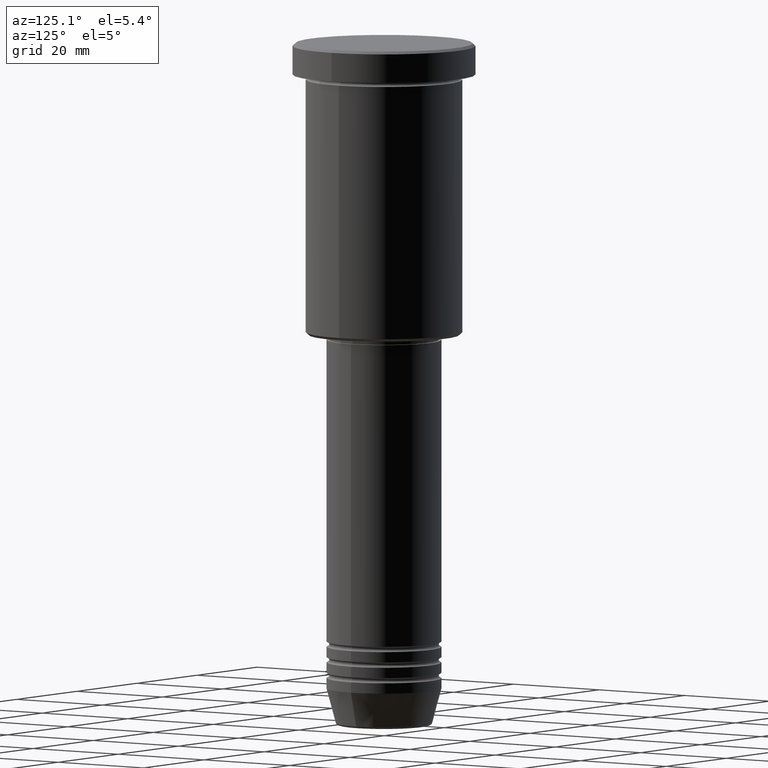
[diagram: clean part render]
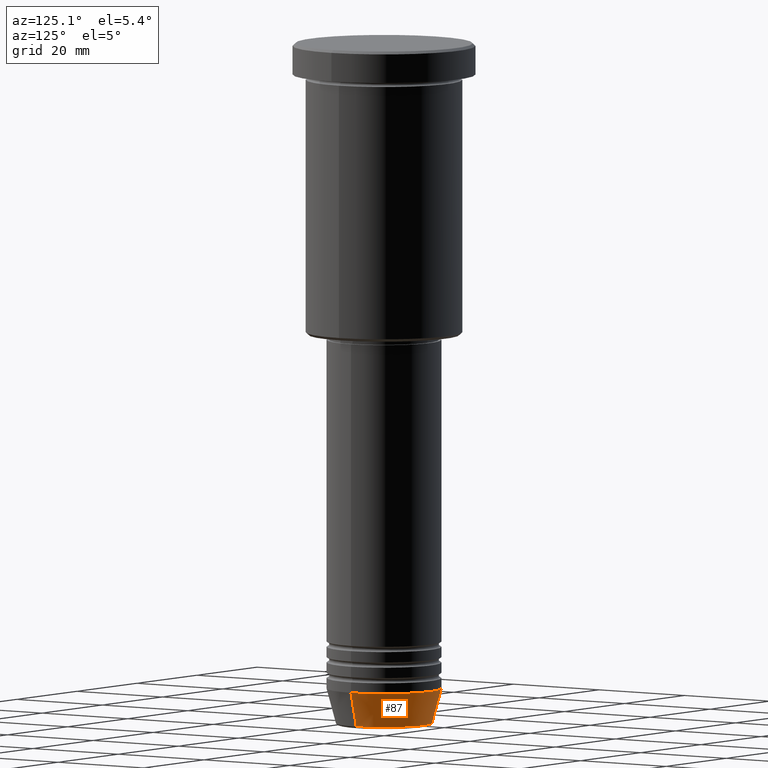
[diagram: same view with one face highlighted and labeled with its STEP entity id]
A machine part, auxiliary view. The second image highlights one B-rep face of the part: STEP entity #87.
In plain terms, the highlighted conical surface has half-angle 15 deg.
Its self-contained STEP definition (entity closure, byte-faithful):
#9 = AXIS2_PLACEMENT_3D ( 'NONE', #365, #901, #186 ) ;
#20 = DIRECTION ( 'NONE',  ( -0.000000000000000000, -0.000000000000000000, 1.000000000000000000 ) ) ;
#38 = ORIENTED_EDGE ( 'NONE', *, *, #137, .T. ) ;
#74 = CARTESIAN_POINT ( 'NONE',  ( 0.000000000000000000, 0.000000000000000000, -124.0000000000000000 ) ) ;
#87 = ADVANCED_FACE ( 'NONE', ( #357 ), #1093, .T. ) ;
#118 = VECTOR ( 'NONE', #348, 1000.000000000000000 ) ;
#137 = EDGE_CURVE ( 'NONE', #367, #667, #909, .T. ) ;
#141 = ORIENTED_EDGE ( 'NONE', *, *, #998, .T. ) ;
#174 = LINE ( 'NONE', #1151, #118 ) ;
#186 = DIRECTION ( 'NONE',  ( 1.000000000000000000, 0.000000000000000000, 0.000000000000000000 ) ) ;
#193 = AXIS2_PLACEMENT_3D ( 'NONE', #74, #703, #1164 ) ;
#201 = ORIENTED_EDGE ( 'NONE', *, *, #509, .F. ) ;
#303 = EDGE_CURVE ( 'NONE', #484, #667, #374, .T. ) ;
#316 = CIRCLE ( 'NONE', #9, 9.223655072137187716 ) ;
#348 = DIRECTION ( 'NONE',  ( 0.2588190451025213501, 0.000000000000000000, 0.9659258262890680902 ) ) ;
#357 = FACE_OUTER_BOUND ( 'NONE', #947, .T. ) ;
#365 = CARTESIAN_POINT ( 'NONE',  ( 0.000000000000000000, 0.000000000000000000, -130.6294095225512422 ) ) ;
#367 = VERTEX_POINT ( 'NONE', #1016 ) ;
#374 = CIRCLE ( 'NONE', #464, 11.00000000000000000 ) ;
#440 = ORIENTED_EDGE ( 'NONE', *, *, #303, .F. ) ;
#464 = AXIS2_PLACEMENT_3D ( 'NONE', #659, #20, #1145 ) ;
#484 = VERTEX_POINT ( 'NONE', #975 ) ;
#509 = EDGE_CURVE ( 'NONE', #586, #484, #174, .T. ) ;
#554 = DIRECTION ( 'NONE',  ( -0.2588190451025213501, 3.169619151431772337E-17, 0.9659258262890680902 ) ) ;
#586 = VERTEX_POINT ( 'NONE', #1092 ) ;
#659 = CARTESIAN_POINT ( 'NONE',  ( 0.000000000000000000, 0.000000000000000000, -124.0000000000000000 ) ) ;
#667 = VERTEX_POINT ( 'NONE', #1183 ) ;
#686 = VECTOR ( 'NONE', #554, 1000.000000000000000 ) ;
#703 = DIRECTION ( 'NONE',  ( -0.000000000000000000, -0.000000000000000000, 1.000000000000000000 ) ) ;
#901 = DIRECTION ( 'NONE',  ( -0.000000000000000000, -0.000000000000000000, 1.000000000000000000 ) ) ;
#909 = LINE ( 'NONE', #1101, #686 ) ;
#947 = EDGE_LOOP ( 'NONE', ( #141, #38, #440, #201 ) ) ;
#975 = CARTESIAN_POINT ( 'NONE',  ( 11.00000000000000000, 0.000000000000000000, -124.0000000000000000 ) ) ;
#998 = EDGE_CURVE ( 'NONE', #586, #367, #316, .T. ) ;
#1016 = CARTESIAN_POINT ( 'NONE',  ( -9.223655072137187716, 1.238341722557647004E-15, -130.6294095225512422 ) ) ;
#1092 = CARTESIAN_POINT ( 'NONE',  ( 9.223655072137187716, 0.000000000000000000, -130.6294095225512422 ) ) ;
#1093 = CONICAL_SURFACE ( 'NONE', #193, 11.00000000000000000, 0.2617993877991500740 ) ;
#1101 = CARTESIAN_POINT ( 'NONE',  ( -11.00000000000000000, 1.347111479062088405E-15, -124.0000000000000000 ) ) ;
#1145 = DIRECTION ( 'NONE',  ( 1.000000000000000000, 0.000000000000000000, 0.000000000000000000 ) ) ;
#1151 = CARTESIAN_POINT ( 'NONE',  ( 11.00000000000000000, 0.000000000000000000, -124.0000000000000000 ) ) ;
#1164 = DIRECTION ( 'NONE',  ( 1.000000000000000000, 0.000000000000000000, 0.000000000000000000 ) ) ;
#1183 = CARTESIAN_POINT ( 'NONE',  ( -11.00000000000000000, 1.347111479062088405E-15, -124.0000000000000000 ) ) ;